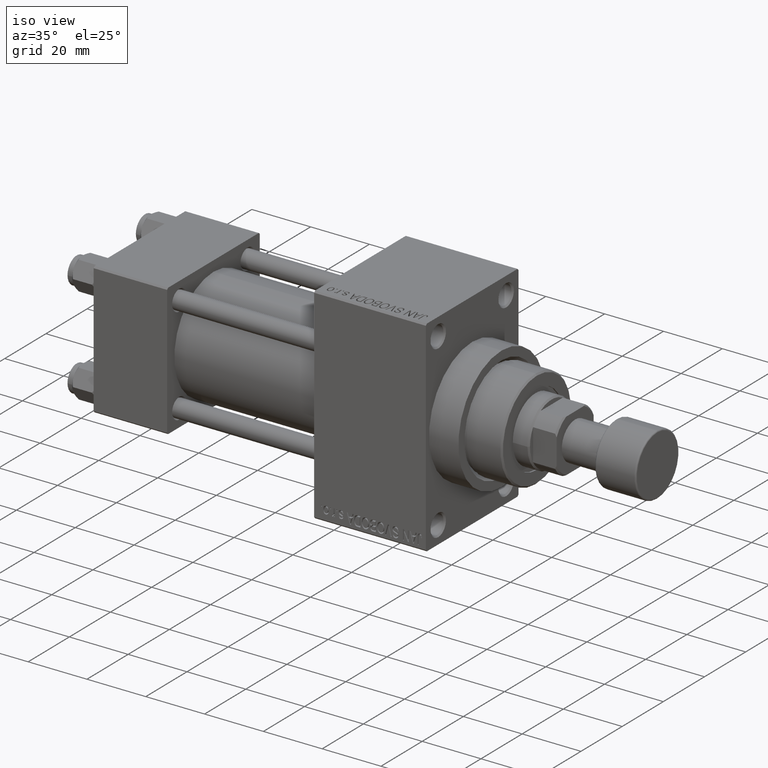
[diagram: clean part render]
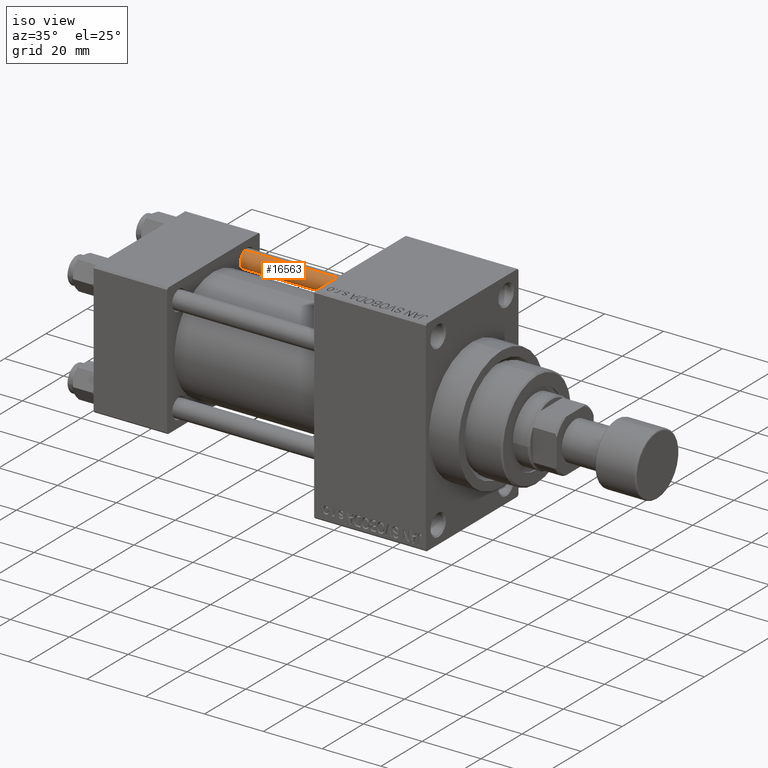
[diagram: same view with one face highlighted and labeled with its STEP entity id]
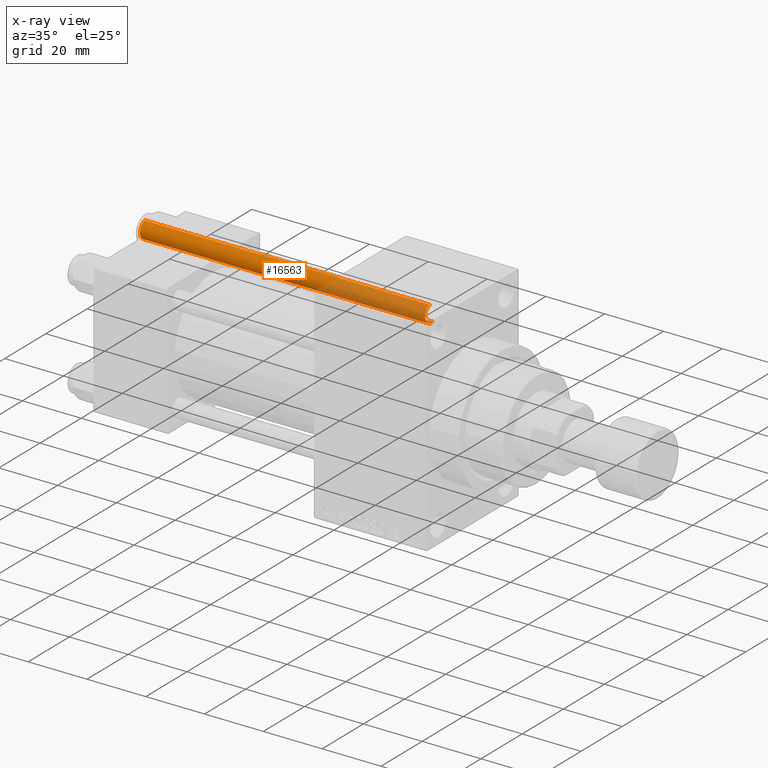
[diagram: x-ray of the same camera — body ghosted, the highlighted face saturated]
A machine part, iso view. The second image highlights one B-rep face of the part: STEP entity #16563.
The next image is the same camera in x-ray: the body ghosted, the highlighted face saturated — about 35% of this face is hidden behind the body in this view.
In plain terms, the highlighted cylindrical surface (edge-blend (fillet) strip) has radius 3 mm, axis along (-1, -0, 0).
Its self-contained STEP definition (entity closure, byte-faithful):
#11 = ORIENTED_EDGE ( 'NONE', *, *, #11951, .T. ) ;
#1310 = VECTOR ( 'NONE', #35980, 1000.000000000000000 ) ;
#1496 = CARTESIAN_POINT ( 'NONE',  ( 0.000000000000000000, 0.000000000000000000, 97.50000000000001421 ) ) ;
#2860 = CARTESIAN_POINT ( 'NONE',  ( -3.000000000000000444, 0.000000000000000000, 97.50000000000001421 ) ) ;
#3331 = AXIS2_PLACEMENT_3D ( 'NONE', #1496, #45503, #16156 ) ;
#7200 = CARTESIAN_POINT ( 'NONE',  ( 0.000000000000000000, 0.000000000000000000, 98.00000000000000000 ) ) ;
#10851 = VECTOR ( 'NONE', #26071, 1000.000000000000000 ) ;
#11394 = CARTESIAN_POINT ( 'NONE',  ( 3.000000000000000444, 3.673940397442060361E-16, 98.00000000000000000 ) ) ;
#11446 = CARTESIAN_POINT ( 'NONE',  ( 0.000000000000000000, 0.000000000000000000, 0.5000000000000281997 ) ) ;
#11922 = VERTEX_POINT ( 'NONE', #13385 ) ;
#11951 = EDGE_CURVE ( 'NONE', #21744, #15191, #21315, .T. ) ;
#13385 = CARTESIAN_POINT ( 'NONE',  ( 3.000000000000000444, 3.673940397442060361E-16, 97.50000000000001421 ) ) ;
#14294 = LINE ( 'NONE', #11394, #10851 ) ;
#15191 = VERTEX_POINT ( 'NONE', #30854 ) ;
#15290 = DIRECTION ( 'NONE',  ( 1.000000000000000000, 0.000000000000000000, 0.000000000000000000 ) ) ;
#15360 = FACE_OUTER_BOUND ( 'NONE', #32633, .T. ) ;
#16156 = DIRECTION ( 'NONE',  ( 1.000000000000000000, 0.000000000000000000, 0.000000000000000000 ) ) ;
#16563 = ADVANCED_FACE ( 'NONE', ( #15360 ), #29806, .T. ) ;
#21315 = LINE ( 'NONE', #32853, #1310 ) ;
#21744 = VERTEX_POINT ( 'NONE', #2860 ) ;
#21875 = DIRECTION ( 'NONE',  ( -0.000000000000000000, -0.000000000000000000, -1.000000000000000000 ) ) ;
#24067 = CIRCLE ( 'NONE', #3331, 3.000000000000000444 ) ;
#25435 = ORIENTED_EDGE ( 'NONE', *, *, #27454, .F. ) ;
#26071 = DIRECTION ( 'NONE',  ( -0.000000000000000000, -0.000000000000000000, -1.000000000000000000 ) ) ;
#26388 = AXIS2_PLACEMENT_3D ( 'NONE', #11446, #30450, #15290 ) ;
#27454 = EDGE_CURVE ( 'NONE', #11922, #44155, #14294, .T. ) ;
#29806 = CYLINDRICAL_SURFACE ( 'NONE', #42905, 3.000000000000000444 ) ;
#30450 = DIRECTION ( 'NONE',  ( -0.000000000000000000, -0.000000000000000000, 1.000000000000000000 ) ) ;
#30854 = CARTESIAN_POINT ( 'NONE',  ( -3.000000000000000444, 0.000000000000000000, 0.5000000000000281997 ) ) ;
#31549 = EDGE_CURVE ( 'NONE', #15191, #44155, #47123, .T. ) ;
#32633 = EDGE_LOOP ( 'NONE', ( #25435, #47065, #11, #42753 ) ) ;
#32853 = CARTESIAN_POINT ( 'NONE',  ( -3.000000000000000444, 0.000000000000000000, 98.00000000000000000 ) ) ;
#35980 = DIRECTION ( 'NONE',  ( -0.000000000000000000, -0.000000000000000000, -1.000000000000000000 ) ) ;
#40381 = DIRECTION ( 'NONE',  ( -1.000000000000000000, 0.000000000000000000, 0.000000000000000000 ) ) ;
#42753 = ORIENTED_EDGE ( 'NONE', *, *, #31549, .T. ) ;
#42905 = AXIS2_PLACEMENT_3D ( 'NONE', #7200, #21875, #40381 ) ;
#44155 = VERTEX_POINT ( 'NONE', #46556 ) ;
#45503 = DIRECTION ( 'NONE',  ( 0.000000000000000000, 0.000000000000000000, -1.000000000000000000 ) ) ;
#46261 = EDGE_CURVE ( 'NONE', #11922, #21744, #24067, .T. ) ;
#46556 = CARTESIAN_POINT ( 'NONE',  ( 3.000000000000000444, 3.673940397442060361E-16, 0.5000000000000281997 ) ) ;
#47065 = ORIENTED_EDGE ( 'NONE', *, *, #46261, .T. ) ;
#47123 = CIRCLE ( 'NONE', #26388, 3.000000000000000444 ) ;